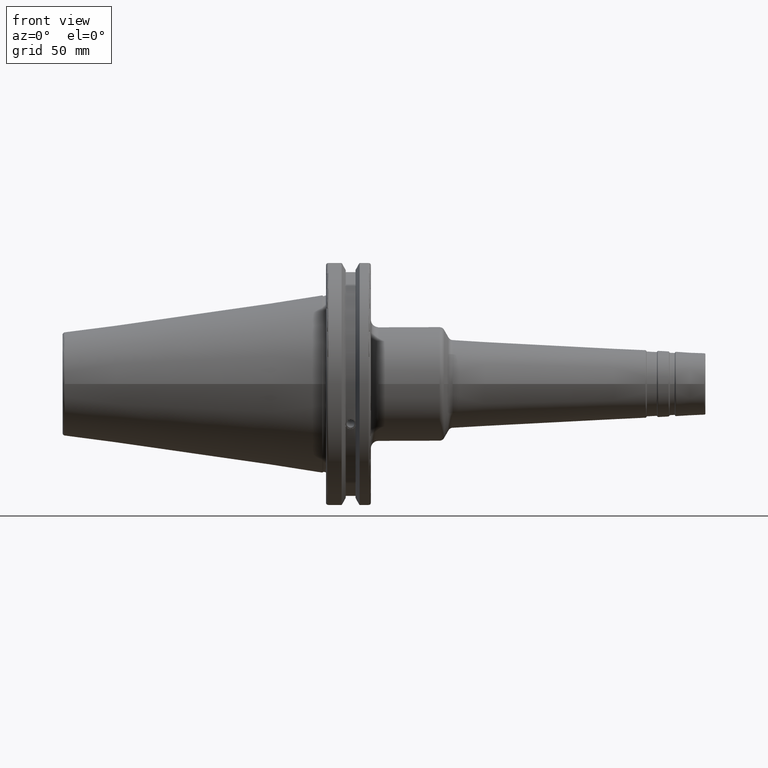
[diagram: clean part render]
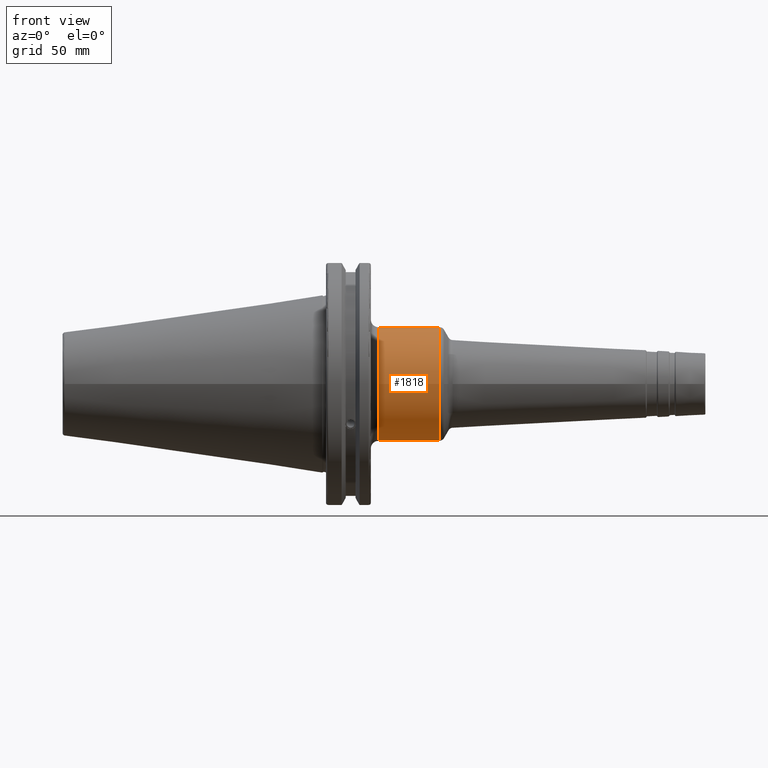
[diagram: same view with one face highlighted and labeled with its STEP entity id]
A machine part, front view. The second image highlights one B-rep face of the part: STEP entity #1818.
In plain terms, the highlighted cylindrical surface (bore or boss wall) has radius 22.25 mm, axis along (1, 0, 0).
Its self-contained STEP definition (entity closure, byte-faithful):
#194=FACE_OUTER_BOUND('',#301,.T.);
#301=EDGE_LOOP('',(#1335,#1336,#1337,#1338,#1339,#1340));
#408=LINE('',#2933,#509);
#509=VECTOR('',#2329,22.25);
#655=CIRCLE('',#2001,22.25);
#656=CIRCLE('',#2002,22.25);
#657=CIRCLE('',#2004,22.25);
#658=CIRCLE('',#2005,22.25);
#772=VERTEX_POINT('',#2926);
#773=VERTEX_POINT('',#2928);
#774=VERTEX_POINT('',#2932);
#775=VERTEX_POINT('',#2934);
#985=EDGE_CURVE('',#772,#773,#655,.T.);
#986=EDGE_CURVE('',#773,#772,#656,.T.);
#987=EDGE_CURVE('',#773,#774,#408,.T.);
#988=EDGE_CURVE('',#775,#774,#657,.T.);
#989=EDGE_CURVE('',#774,#775,#658,.T.);
#1335=ORIENTED_EDGE('',*,*,#986,.F.);
#1336=ORIENTED_EDGE('',*,*,#987,.T.);
#1337=ORIENTED_EDGE('',*,*,#988,.F.);
#1338=ORIENTED_EDGE('',*,*,#989,.F.);
#1339=ORIENTED_EDGE('',*,*,#987,.F.);
#1340=ORIENTED_EDGE('',*,*,#985,.F.);
#1770=CYLINDRICAL_SURFACE('',#2003,22.25);
#1818=ADVANCED_FACE('',(#194),#1770,.T.);
#2001=AXIS2_PLACEMENT_3D('',#2929,#2323,#2324);
#2002=AXIS2_PLACEMENT_3D('',#2930,#2325,#2326);
#2003=AXIS2_PLACEMENT_3D('',#2931,#2327,#2328);
#2004=AXIS2_PLACEMENT_3D('',#2935,#2330,#2331);
#2005=AXIS2_PLACEMENT_3D('',#2936,#2332,#2333);
#2323=DIRECTION('center_axis',(1.,0.,0.));
#2324=DIRECTION('ref_axis',(0.,-1.,1.83697019872103E-16));
#2325=DIRECTION('center_axis',(1.,0.,0.));
#2326=DIRECTION('ref_axis',(0.,-1.,1.83697019872103E-16));
#2327=DIRECTION('center_axis',(1.,0.,0.));
#2328=DIRECTION('ref_axis',(0.,1.,0.));
#2329=DIRECTION('',(-1.,0.,0.));
#2330=DIRECTION('center_axis',(-1.,0.,0.));
#2331=DIRECTION('ref_axis',(0.,-1.,-1.22464679914735E-16));
#2332=DIRECTION('center_axis',(-1.,0.,0.));
#2333=DIRECTION('ref_axis',(0.,-1.,-1.22464679914735E-16));
#2926=CARTESIAN_POINT('',(45.9532237500965,-2.72483912810286E-15,22.25));
#2928=CARTESIAN_POINT('',(45.9532237500965,-22.25,-2.72483912810286E-15));
#2929=CARTESIAN_POINT('Origin',(45.9532237500965,0.,0.));
#2930=CARTESIAN_POINT('Origin',(45.9532237500965,0.,0.));
#2931=CARTESIAN_POINT('Origin',(33.0789621442379,0.,0.));
#2932=CARTESIAN_POINT('',(22.05,-22.25,-2.72483912810286E-15));
#2933=CARTESIAN_POINT('',(33.0789621442379,-22.25,-2.72483912810286E-15));
#2934=CARTESIAN_POINT('',(22.05,-2.72483912810286E-15,-22.25));
#2935=CARTESIAN_POINT('Origin',(22.05,0.,0.));
#2936=CARTESIAN_POINT('Origin',(22.05,0.,0.));